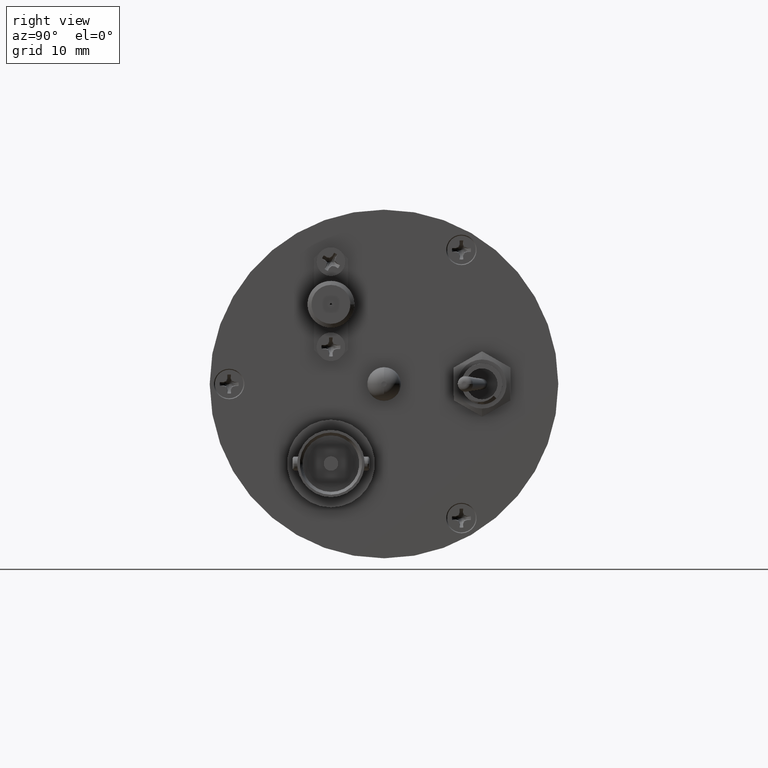
[diagram: clean part render]
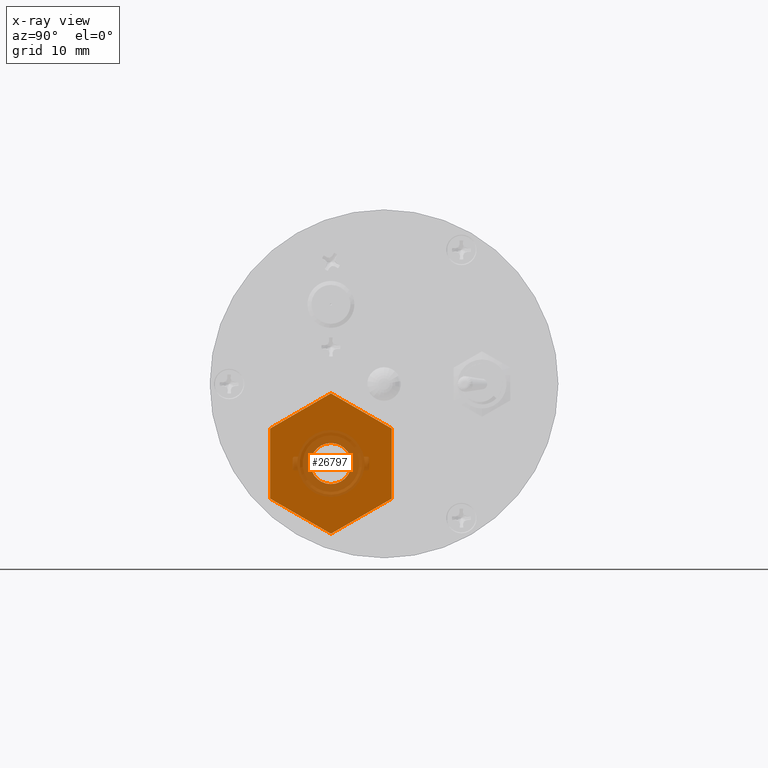
[diagram: x-ray — body ghosted, one internal face saturated and labeled with its STEP entity id]
A machine part, right view, then the same camera in x-ray: the body is ghosted and one INTERNAL B-rep face — a face not visible from any outside direction — is saturated and labeled: STEP entity #26797.
In plain terms, the highlighted planar face has unit normal (1, -0, -0).
Its self-contained STEP definition (entity closure, byte-faithful):
#1381 = CARTESIAN_POINT ( 'NONE',  ( -9.273793999999998800, -7.619999999999998300, -8.483599999999999100 ) ) ;
#1845 = VERTEX_POINT ( 'NONE', #1381 ) ;
#2250 = EDGE_CURVE ( 'NONE', #7573, #1845, #8685, .T. ) ;
#2722 = CARTESIAN_POINT ( 'NONE',  ( -9.273793999999998800, 1.104900000000913900, -16.46732336365457900 ) ) ;
#3084 = DIRECTION ( 'NONE',  ( -1.000000000000000000, 2.775557561562890100E-017, -1.683656803805726100E-033 ) ) ;
#4667 = AXIS2_PLACEMENT_3D ( 'NONE', #28022, #11558, #25487 ) ;
#5142 = DIRECTION ( 'NONE',  ( 1.683656803805726100E-033, -2.022004307797137000E-017, 1.000000000000000000 ) ) ;
#5194 = CARTESIAN_POINT ( 'NONE',  ( -9.273793999999998800, -16.34489999999999900, -16.46732336365299800 ) ) ;
#5303 = DIRECTION ( 'NONE',  ( 2.403703357978926900E-017, 0.8660254037842480800, -0.5000000000003300700 ) ) ;
#5376 = VERTEX_POINT ( 'NONE', #2722 ) ;
#5400 = VERTEX_POINT ( 'NONE', #12013 ) ;
#5681 = DIRECTION ( 'NONE',  ( 0.0000000000000000000, 0.0000000000000000000, -1.000000000000000000 ) ) ;
#5721 = VECTOR ( 'NONE', #11387, 1000.000000000000000 ) ;
#5941 = VERTEX_POINT ( 'NONE', #19830 ) ;
#5990 = VECTOR ( 'NONE', #6340, 1000.000000000000000 ) ;
#6081 = EDGE_LOOP ( 'NONE', ( #22068, #17840 ) ) ;
#6188 = FACE_BOUND ( 'NONE', #6081, .T. ) ;
#6340 = DIRECTION ( 'NONE',  ( -2.403703357978926900E-017, -0.8660254037842480800, 0.5000000000003300700 ) ) ;
#6744 = EDGE_CURVE ( 'NONE', #5941, #23529, #12978, .T. ) ;
#6972 = EDGE_CURVE ( 'NONE', #1845, #7573, #13671, .T. ) ;
#7573 = VERTEX_POINT ( 'NONE', #29242 ) ;
#7747 = CARTESIAN_POINT ( 'NONE',  ( -9.273793999999998800, 1.104900000000001500, -11.43000000000000000 ) ) ;
#7831 = VECTOR ( 'NONE', #25797, 1000.000000000000000 ) ;
#8685 = CIRCLE ( 'NONE', #21447, 2.946400000000000100 ) ;
#9017 = DIRECTION ( 'NONE',  ( -1.683656803805726100E-033, 2.022004307797137000E-017, -1.000000000000000000 ) ) ;
#9322 = VECTOR ( 'NONE', #5142, 1000.000000000000000 ) ;
#10519 = CARTESIAN_POINT ( 'NONE',  ( -9.273793999999998800, -7.620000000000911400, -1.355353272691576000 ) ) ;
#10728 = EDGE_CURVE ( 'NONE', #21504, #27836, #29526, .T. ) ;
#11314 = CARTESIAN_POINT ( 'NONE',  ( -9.273793999999998800, -16.34489999999999900, -16.46732336365299800 ) ) ;
#11387 = DIRECTION ( 'NONE',  ( 2.403703357978926900E-017, 0.8660254037842480800, 0.5000000000003300700 ) ) ;
#11558 = DIRECTION ( 'NONE',  ( -1.000000000000000000, 2.775557561562890100E-017, -1.683656803805726100E-033 ) ) ;
#11654 = VECTOR ( 'NONE', #5303, 1000.000000000000000 ) ;
#11672 = CARTESIAN_POINT ( 'NONE',  ( -9.273793999999998800, -7.619999999999995700, -11.43000000000000000 ) ) ;
#11756 = ORIENTED_EDGE ( 'NONE', *, *, #21705, .F. ) ;
#12013 = CARTESIAN_POINT ( 'NONE',  ( -9.273793999999998800, -7.619999999999541800, -21.50464672730921100 ) ) ;
#12805 = LINE ( 'NONE', #5194, #11654 ) ;
#12978 = LINE ( 'NONE', #20379, #5990 ) ;
#13671 = CIRCLE ( 'NONE', #4667, 2.946400000000000100 ) ;
#13848 = CARTESIAN_POINT ( 'NONE',  ( -9.273793999999998800, -16.34489999999999900, -11.43000000000000000 ) ) ;
#13934 = PLANE ( 'NONE',  #15412 ) ;
#14044 = LINE ( 'NONE', #30242, #7831 ) ;
#15228 = ORIENTED_EDGE ( 'NONE', *, *, #20486, .F. ) ;
#15412 = AXIS2_PLACEMENT_3D ( 'NONE', #11672, #16172, #20971 ) ;
#15517 = ORIENTED_EDGE ( 'NONE', *, *, #10728, .F. ) ;
#16172 = DIRECTION ( 'NONE',  ( 1.000000000000000000, -2.775557561562890100E-017, -2.244875738407634100E-033 ) ) ;
#17057 = LINE ( 'NONE', #7747, #9322 ) ;
#17125 = VECTOR ( 'NONE', #9017, 1000.000000000000000 ) ;
#17191 = CARTESIAN_POINT ( 'NONE',  ( -9.273793999999998800, -7.619999999999995700, -11.43000000000000000 ) ) ;
#17840 = ORIENTED_EDGE ( 'NONE', *, *, #6972, .F. ) ;
#18236 = LINE ( 'NONE', #25409, #5721 ) ;
#18404 = EDGE_CURVE ( 'NONE', #27836, #5400, #12805, .T. ) ;
#18722 = ORIENTED_EDGE ( 'NONE', *, *, #18404, .F. ) ;
#19830 = CARTESIAN_POINT ( 'NONE',  ( -9.273793999999998800, 1.104900000000001500, -6.392676636346998900 ) ) ;
#20379 = CARTESIAN_POINT ( 'NONE',  ( -9.273793999999998800, 1.104900000000001500, -6.392676636346998900 ) ) ;
#20486 = EDGE_CURVE ( 'NONE', #5400, #5376, #18236, .T. ) ;
#20971 = DIRECTION ( 'NONE',  ( -1.683656803805726100E-033, 2.022004307797137000E-017, -1.000000000000000000 ) ) ;
#21447 = AXIS2_PLACEMENT_3D ( 'NONE', #17191, #3084, #5681 ) ;
#21504 = VERTEX_POINT ( 'NONE', #29938 ) ;
#21705 = EDGE_CURVE ( 'NONE', #5376, #5941, #17057, .T. ) ;
#22068 = ORIENTED_EDGE ( 'NONE', *, *, #2250, .F. ) ;
#22745 = EDGE_CURVE ( 'NONE', #23529, #21504, #14044, .T. ) ;
#23529 = VERTEX_POINT ( 'NONE', #10519 ) ;
#23991 = EDGE_LOOP ( 'NONE', ( #15517, #26896, #24695, #11756, #15228, #18722 ) ) ;
#24695 = ORIENTED_EDGE ( 'NONE', *, *, #6744, .F. ) ;
#25409 = CARTESIAN_POINT ( 'NONE',  ( -9.273793999999998800, -7.619999999999998300, -21.50464672731000000 ) ) ;
#25487 = DIRECTION ( 'NONE',  ( 0.0000000000000000000, 0.0000000000000000000, -1.000000000000000000 ) ) ;
#25797 = DIRECTION ( 'NONE',  ( -2.403703357978926900E-017, -0.8660254037842480800, -0.5000000000003300700 ) ) ;
#26797 = ADVANCED_FACE ( 'NONE', ( #6188, #30319 ), #13934, .F. ) ;
#26896 = ORIENTED_EDGE ( 'NONE', *, *, #22745, .F. ) ;
#27836 = VERTEX_POINT ( 'NONE', #11314 ) ;
#28022 = CARTESIAN_POINT ( 'NONE',  ( -9.273793999999998800, -7.619999999999995700, -11.43000000000000000 ) ) ;
#29242 = CARTESIAN_POINT ( 'NONE',  ( -9.273793999999998800, -7.619999999999995700, -14.37639999999999900 ) ) ;
#29526 = LINE ( 'NONE', #13848, #17125 ) ;
#29938 = CARTESIAN_POINT ( 'NONE',  ( -9.273793999999998800, -16.34490000000091200, -6.392676636345421500 ) ) ;
#30242 = CARTESIAN_POINT ( 'NONE',  ( -9.273793999999998800, -7.619999999999999200, -1.355353272689999100 ) ) ;
#30319 = FACE_OUTER_BOUND ( 'NONE', #23991, .T. ) ;